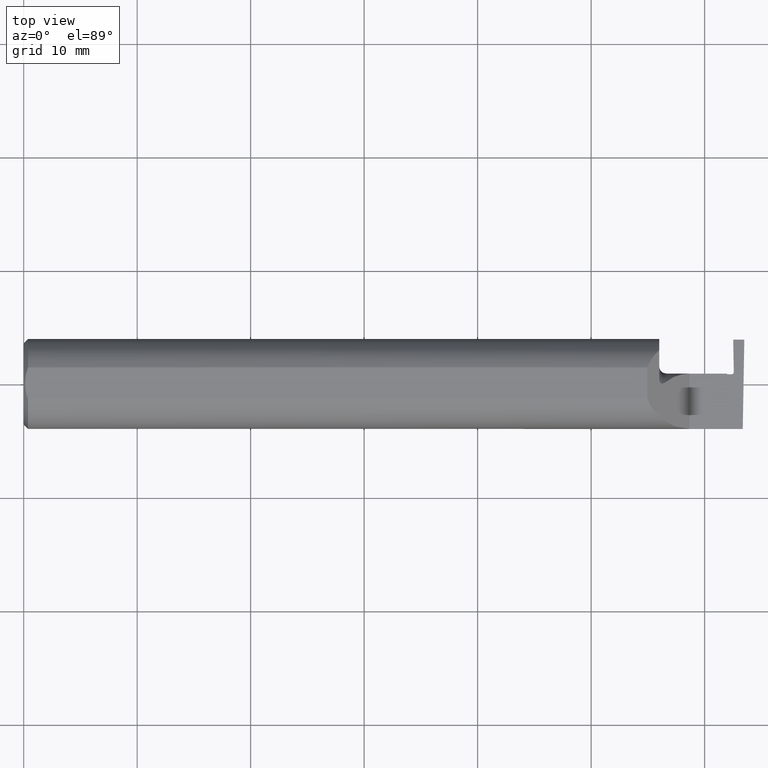
[diagram: clean part render]
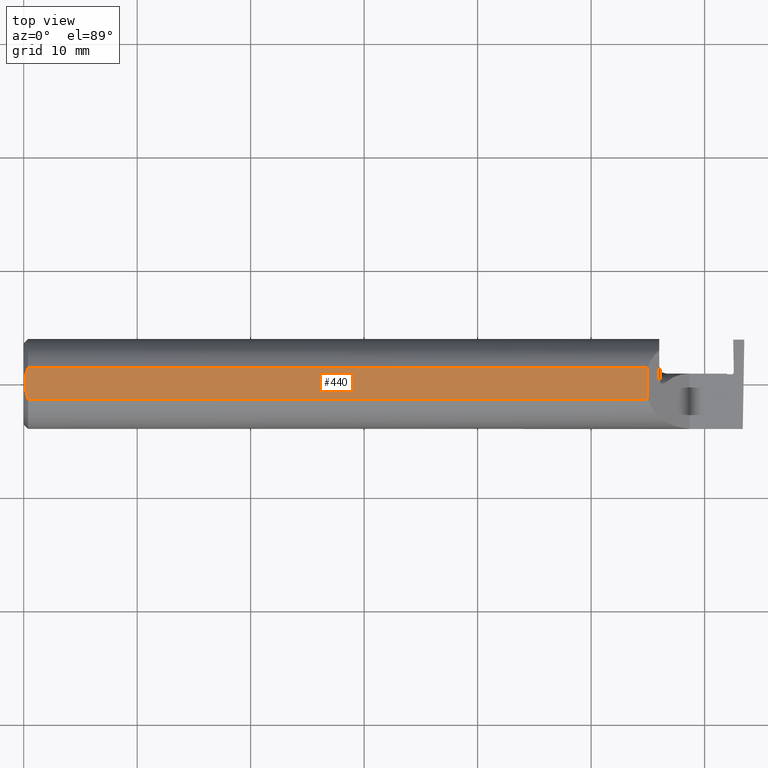
[diagram: same view with one face highlighted and labeled with its STEP entity id]
A machine part, top view. The second image highlights one B-rep face of the part: STEP entity #440.
In plain terms, the highlighted planar face has unit normal (0, -0, 1).
Its self-contained STEP definition (entity closure, byte-faithful):
#16 = VERTEX_POINT ( 'NONE', #688 ) ;
#19 = CARTESIAN_POINT ( 'NONE',  ( 0.01499999999999999944, -0.05497272050753900657, 0.1460999999999999799 ) ) ;
#21 = CARTESIAN_POINT ( 'NONE',  ( 0.005929349363808920914, 0.01879672308419500643, 0.1460999999999999799 ) ) ;
#61 = ORIENTED_EDGE ( 'NONE', *, *, #912, .F. ) ;
#90 = CARTESIAN_POINT ( 'NONE',  ( 0.01499999999999999771, 0.05497272050753900657, 0.1460999999999999799 ) ) ;
#158 = CARTESIAN_POINT ( 'NONE',  ( 0.009371209226503902576, 0.03711161584255317364, 0.1461000000000000076 ) ) ;
#178 = ORIENTED_EDGE ( 'NONE', *, *, #635, .T. ) ;
#229 = EDGE_CURVE ( 'NONE', #582, #807, #391, .T. ) ;
#245 = CARTESIAN_POINT ( 'NONE',  ( 0.01499999999999999771, 0.05497272050753900657, 0.1460999999999999799 ) ) ;
#264 = ORIENTED_EDGE ( 'NONE', *, *, #229, .T. ) ;
#266 = CARTESIAN_POINT ( 'NONE',  ( 2.500000000000000000, -0.1561000000000000165, 0.1460999999999999799 ) ) ;
#280 = CARTESIAN_POINT ( 'NONE',  ( 2.163900000000000823, 0.05497272050753900657, 0.1460999999999999799 ) ) ;
#291 = AXIS2_PLACEMENT_3D ( 'NONE', #266, #480, #475 ) ;
#308 = CARTESIAN_POINT ( 'NONE',  ( 0.01187749995209270472, 0.04610609988228752537, 0.1460999999999999799 ) ) ;
#311 = CARTESIAN_POINT ( 'NONE',  ( 2.163900000000000823, -0.1561000000000000165, 0.1460999999999999799 ) ) ;
#338 = LINE ( 'NONE', #941, #655 ) ;
#377 = CARTESIAN_POINT ( 'NONE',  ( 0.004999999999999936787, 2.057148927093534050E-17, 0.1460999999999999799 ) ) ;
#391 = B_SPLINE_CURVE_WITH_KNOTS ( 'NONE', 3,
 ( #870, #693, #465, #645, #570, #19 ),
 .UNSPECIFIED., .F., .F.,
 ( 4, 2, 4 ),
 ( 0.004704317630101885993, 0.005408659995628783967, 0.006113002361155681942 ),
 .UNSPECIFIED. ) ;
#426 = LINE ( 'NONE', #513, #891 ) ;
#440 = ADVANCED_FACE ( 'NONE', ( #548 ), #946, .T. ) ;
#452 = DIRECTION ( 'NONE',  ( 0.000000000000000000, -1.000000000000000000, 0.000000000000000000 ) ) ;
#465 = CARTESIAN_POINT ( 'NONE',  ( 0.005910707775482238607, -0.01866948012536270504, 0.1461000000000000076 ) ) ;
#471 = B_SPLINE_CURVE_WITH_KNOTS ( 'NONE', 3,
 ( #245, #308, #158, #21, #542, #377 ),
 .UNSPECIFIED., .F., .F.,
 ( 4, 2, 4 ),
 ( 0.003294562426666346362, 0.003999440028384116178, 0.004704317630101885993 ),
 .UNSPECIFIED. ) ;
#475 = DIRECTION ( 'NONE',  ( 1.000000000000000000, 0.000000000000000000, -0.000000000000000000 ) ) ;
#480 = DIRECTION ( 'NONE',  ( 0.000000000000000000, -0.000000000000000000, 1.000000000000000000 ) ) ;
#513 = CARTESIAN_POINT ( 'NONE',  ( 0.000000000000000000, -0.05497272050753900657, 0.1460999999999999799 ) ) ;
#516 = ORIENTED_EDGE ( 'NONE', *, *, #594, .T. ) ;
#530 = LINE ( 'NONE', #311, #656 ) ;
#542 = CARTESIAN_POINT ( 'NONE',  ( 0.004999999999999902960, 0.009391435229055663386, 0.1460999999999999799 ) ) ;
#547 = DIRECTION ( 'NONE',  ( -1.000000000000000000, -0.000000000000000000, -0.000000000000000000 ) ) ;
#548 = FACE_OUTER_BOUND ( 'NONE', #698, .T. ) ;
#568 = CARTESIAN_POINT ( 'NONE',  ( 0.01499999999999999944, -0.05497272050753900657, 0.1460999999999999799 ) ) ;
#570 = CARTESIAN_POINT ( 'NONE',  ( 0.01190375560897317594, -0.04618065518901644934, 0.1460999999999999799 ) ) ;
#582 = VERTEX_POINT ( 'NONE', #953 ) ;
#586 = ORIENTED_EDGE ( 'NONE', *, *, #731, .T. ) ;
#594 = EDGE_CURVE ( 'NONE', #807, #16, #426, .T. ) ;
#596 = VERTEX_POINT ( 'NONE', #280 ) ;
#618 = VERTEX_POINT ( 'NONE', #90 ) ;
#635 = EDGE_CURVE ( 'NONE', #618, #582, #471, .T. ) ;
#645 = CARTESIAN_POINT ( 'NONE',  ( 0.009356849677355947789, -0.03706298561014172849, 0.1460999999999999799 ) ) ;
#655 = VECTOR ( 'NONE', #547, 39.37007874015748143 ) ;
#656 = VECTOR ( 'NONE', #452, 39.37007874015748143 ) ;
#688 = CARTESIAN_POINT ( 'NONE',  ( 2.163900000000000823, -0.05497272050753899270, 0.1460999999999999799 ) ) ;
#693 = CARTESIAN_POINT ( 'NONE',  ( 0.004999999999999897755, -0.009384304010803548590, 0.1460999999999999521 ) ) ;
#698 = EDGE_LOOP ( 'NONE', ( #61, #586, #178, #264, #516 ) ) ;
#731 = EDGE_CURVE ( 'NONE', #596, #618, #338, .T. ) ;
#746 = DIRECTION ( 'NONE',  ( 1.000000000000000000, 0.000000000000000000, 0.000000000000000000 ) ) ;
#807 = VERTEX_POINT ( 'NONE', #568 ) ;
#870 = CARTESIAN_POINT ( 'NONE',  ( 0.004999999999999936787, 2.057148927093534050E-17, 0.1460999999999999799 ) ) ;
#891 = VECTOR ( 'NONE', #746, 39.37007874015748143 ) ;
#912 = EDGE_CURVE ( 'NONE', #596, #16, #530, .T. ) ;
#941 = CARTESIAN_POINT ( 'NONE',  ( 0.000000000000000000, 0.05497272050753900657, 0.1460999999999999799 ) ) ;
#946 = PLANE ( 'NONE',  #291 ) ;
#953 = CARTESIAN_POINT ( 'NONE',  ( 0.004999999999999936787, 2.057148927093534050E-17, 0.1460999999999999799 ) ) ;